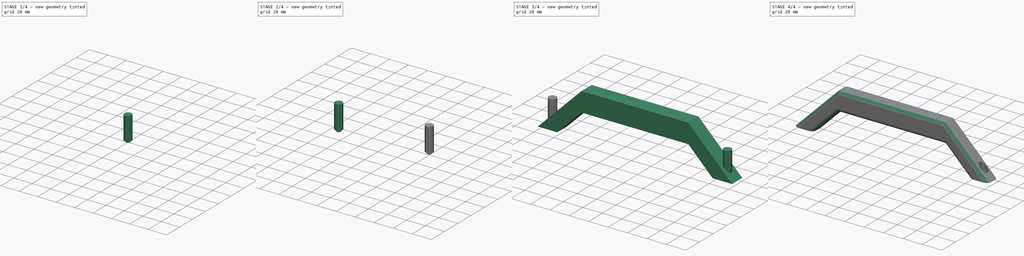
[diagram: build sequence overview — one tinted view per stage of 4, left to right]
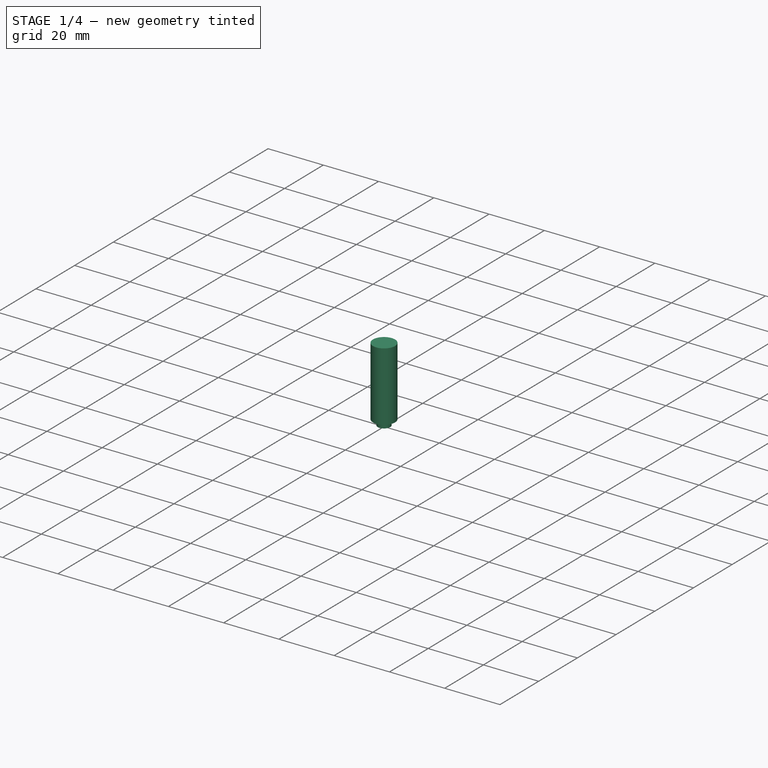
[diagram: stage 1 of 4 — iso view after this stage's code; geometry added in this stage tinted green]
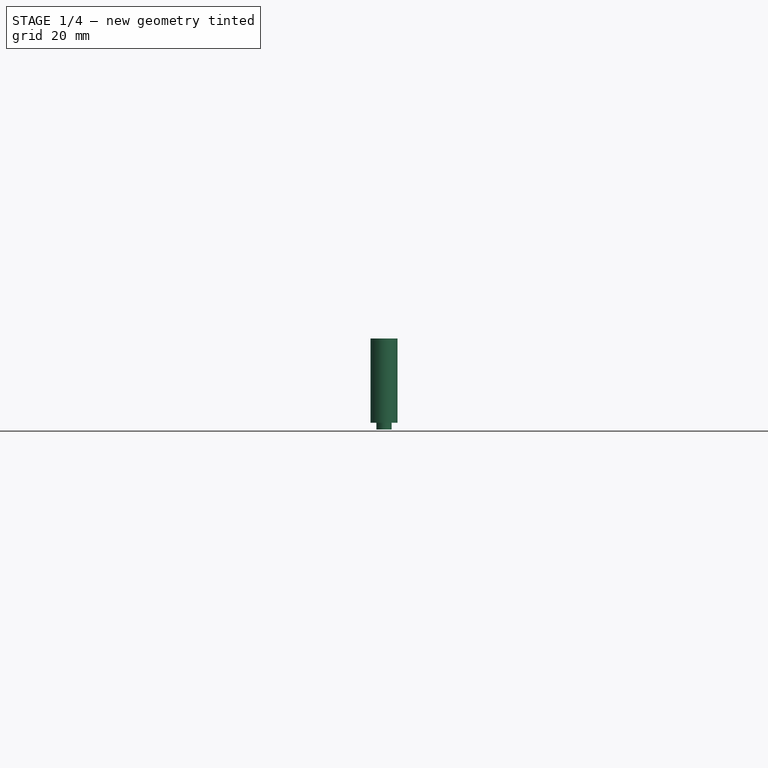
[diagram: stage 1 of 4 — front view after this stage's code; geometry added in this stage tinted green]
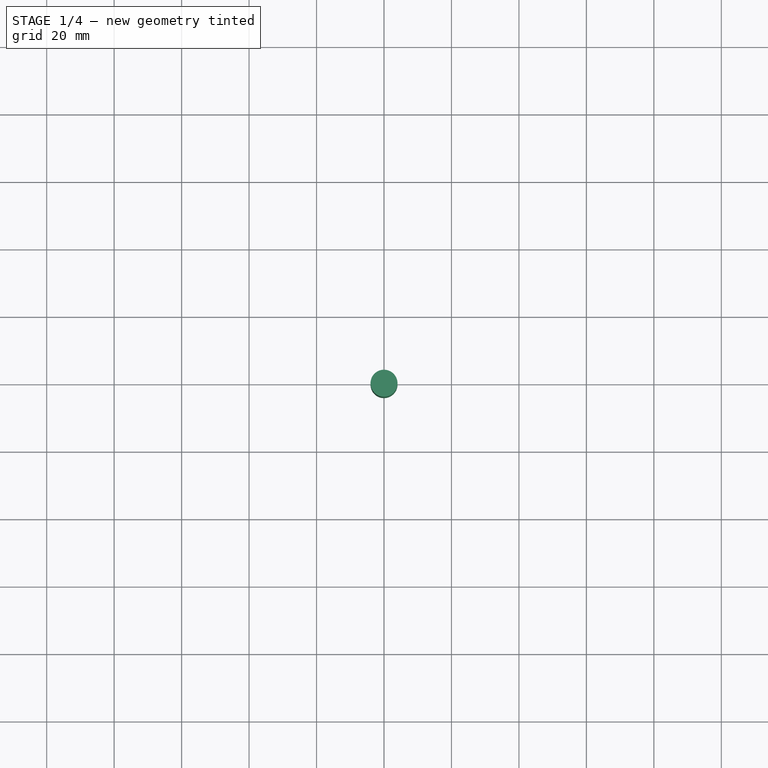
[diagram: stage 1 of 4 — top view after this stage's code; geometry added in this stage tinted green]
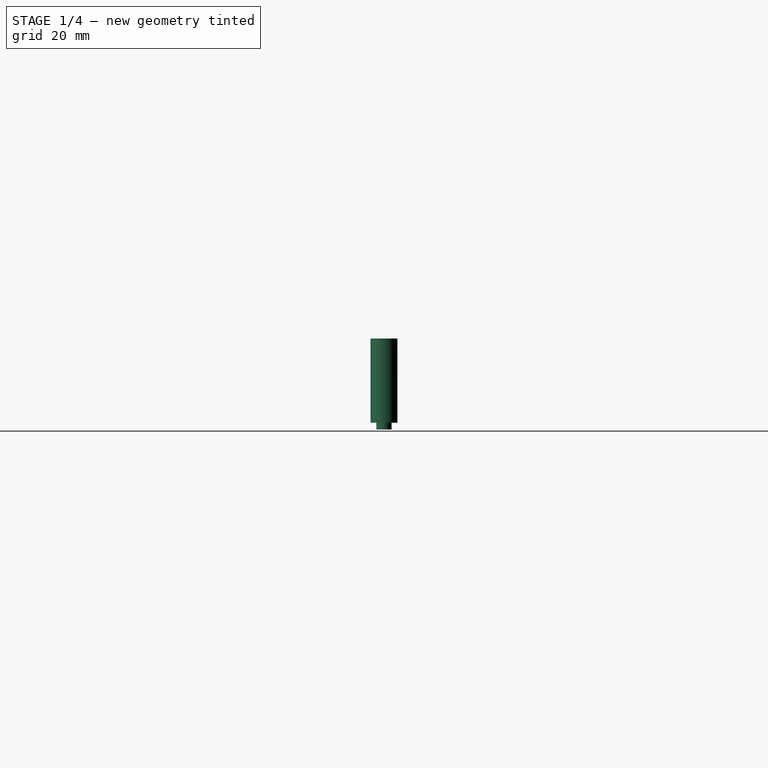
[diagram: stage 1 of 4 — right view after this stage's code; geometry added in this stage tinted green]
FCSTD DOCUMENT  (FreeCAD 1.0R1.0.1)
Label: SimpleHandle01
License: All rights reserved
LicenseURL: http://en.wikipedia.org/wiki/All_rights_reserved
objects: Part::Cylinder×4, Part::MultiFuse×3, Spreadsheet::Sheet×1, Sketcher::SketchObject×1, PartDesign::Pad×1, PartDesign::Body×1, Part::Cut×1, Part::Fillet×1
note: 15 computed .brp shape members not serialized (recipe doc carries the construction recipe); baked Part::Feature solids carry a one-line shape summary decoded from their .brp

FEATURE [Part::Cylinder] Cylinder002
  Angle = 360
  AttacherType = Attacher::AttachEngine3D
  FirstAngle = 0
  Height = 10
  Radius = 2.25
  SecondAngle = 0
FEATURE [Part::Cylinder] Cylinder003
  Angle = 360
  AttacherType = Attacher::AttachEngine3D
  FirstAngle = 0
  Height = 25
  Placement = pos=(0,0,2) rot=(0,0,1;0rad)
  Radius = 4
  SecondAngle = 0
  expr: Height = <<SimpleHandle01>>.h_grip
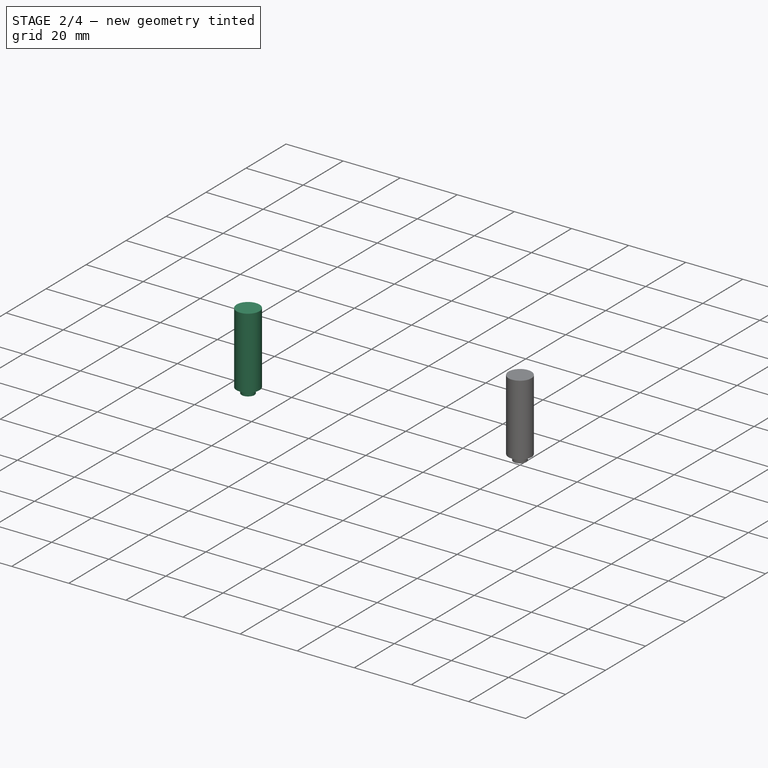
[diagram: stage 2 of 4 — iso view after this stage's code; geometry added in this stage tinted green]
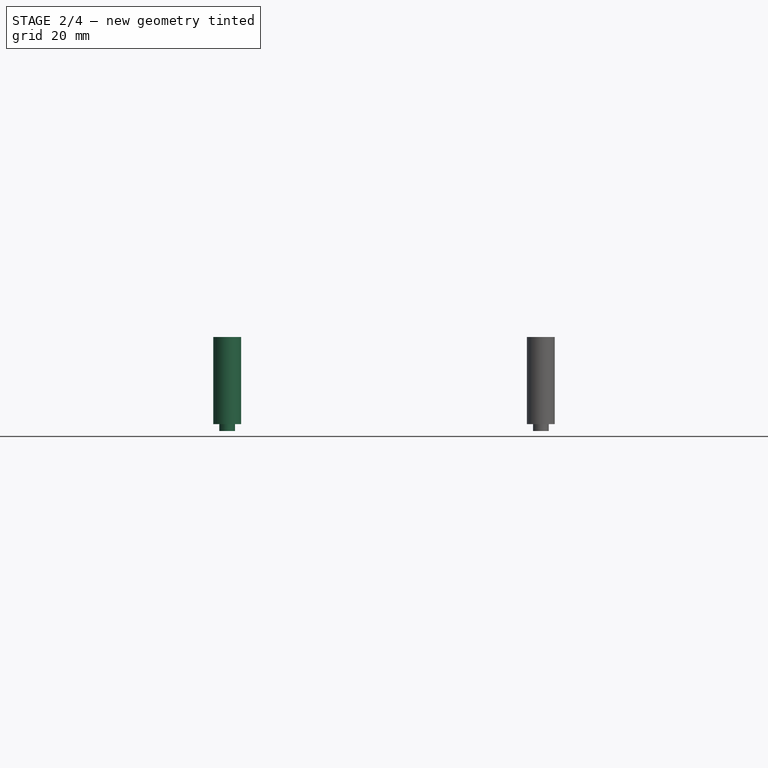
[diagram: stage 2 of 4 — front view after this stage's code; geometry added in this stage tinted green]
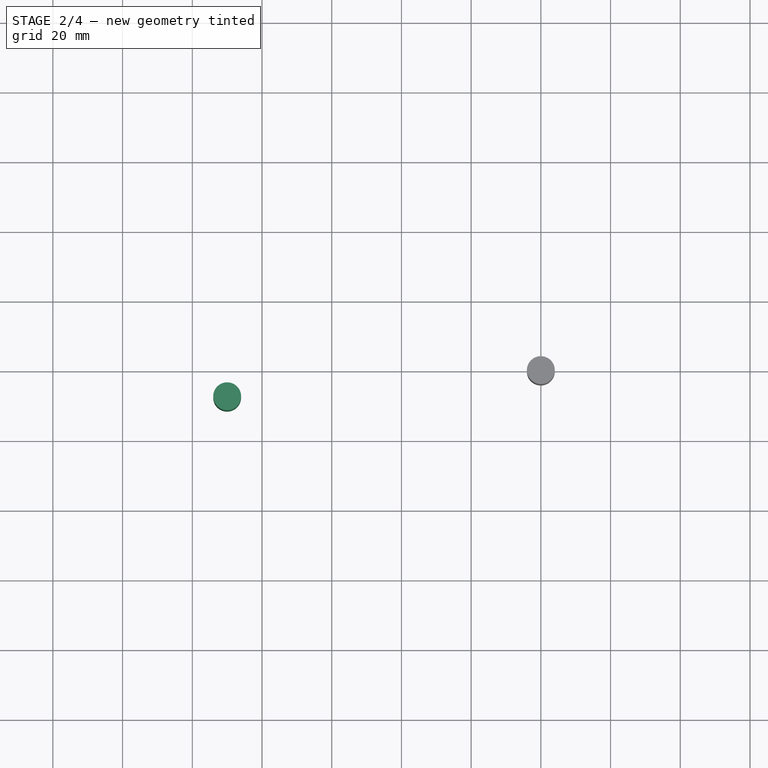
[diagram: stage 2 of 4 — top view after this stage's code; geometry added in this stage tinted green]
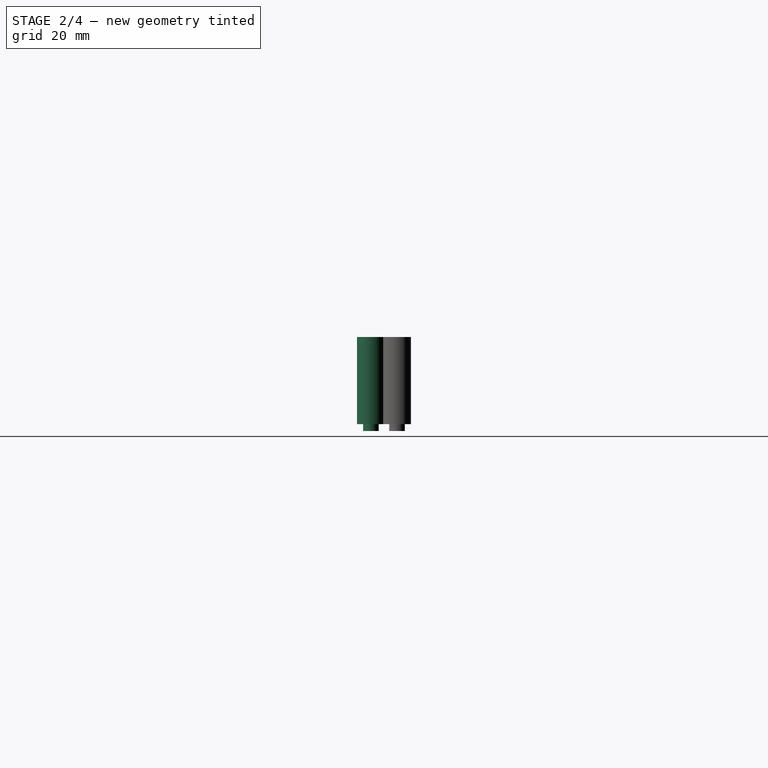
[diagram: stage 2 of 4 — right view after this stage's code; geometry added in this stage tinted green]
FEATURE [PartDesign::Body] Body
  AllowCompound = false
  Group = -> [Sketch,Pad]
  Origin = -> Origin
  Tip = -> Pad
FEATURE [Part::Cylinder] Cylinder
  Angle = 360
  AttacherType = Attacher::AttachEngine3D
  FirstAngle = 0
  Height = 10
  Radius = 2.25
  SecondAngle = 0
FEATURE [Part::Cylinder] Cylinder001
  Angle = 360
  AttacherType = Attacher::AttachEngine3D
  FirstAngle = 0
  Height = 25
  Placement = pos=(0,0,2) rot=(0,0,1;0rad)
  Radius = 4
  SecondAngle = 0
  expr: Height = <<SimpleHandle01>>.h_grip
FEATURE [Part::MultiFuse] Fusion001
  Placement = pos=(-90,-7.5,0) rot=(0,0,1;0rad)
  Shapes = -> [Cylinder003,Cylinder002]
  expr: .Placement.Base.x = -(<<SimpleHandle01>>.l_grip / 2 + <<SimpleHandle01>>.h_grip + <<SimpleHandle01>>.t_handle * tan(45) / 2)
  expr: .Placement.Base.y = -<<SimpleHandle01>>.w_handle / 2
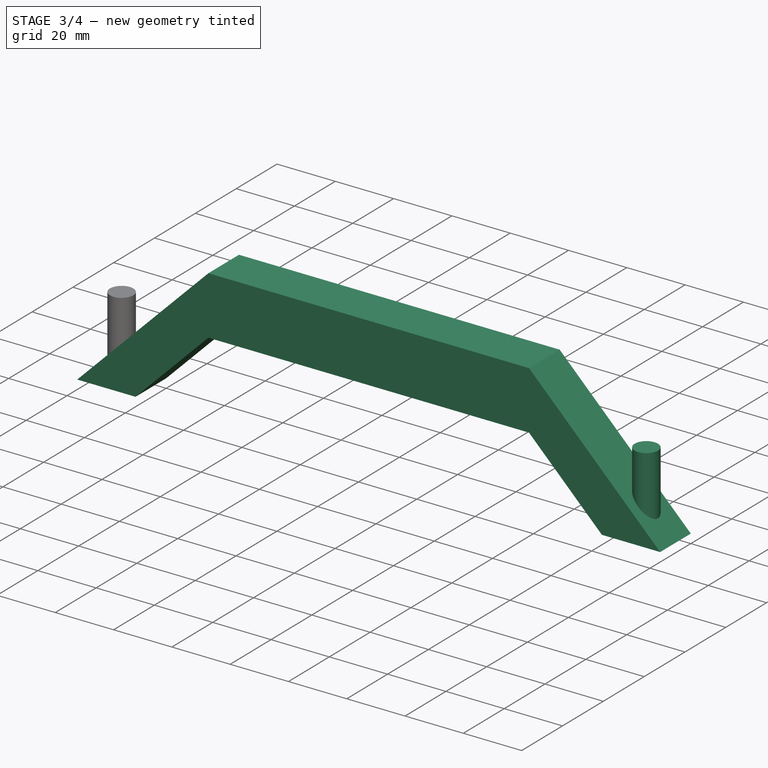
[diagram: stage 3 of 4 — iso view after this stage's code; geometry added in this stage tinted green]
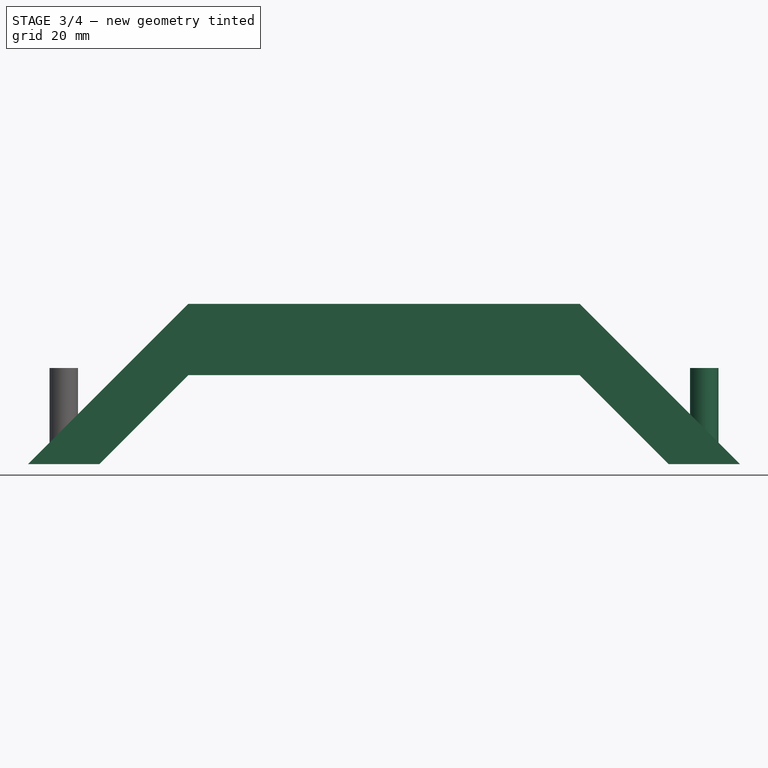
[diagram: stage 3 of 4 — front view after this stage's code; geometry added in this stage tinted green]
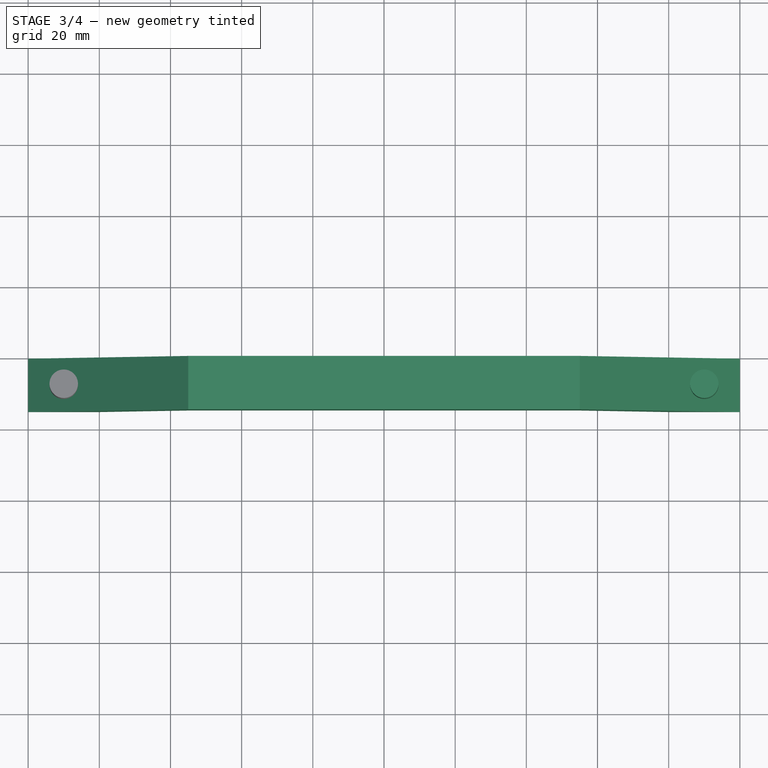
[diagram: stage 3 of 4 — top view after this stage's code; geometry added in this stage tinted green]
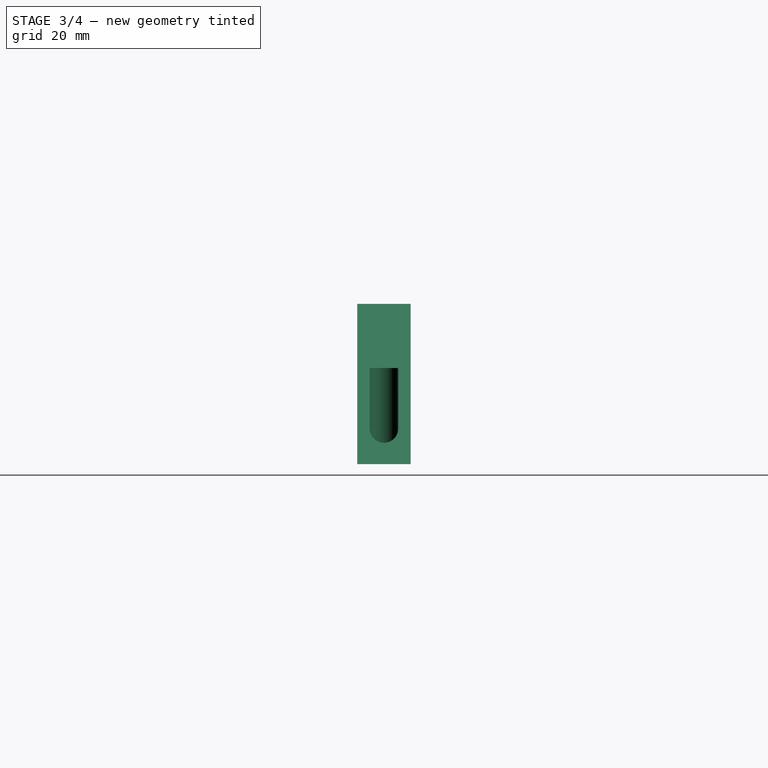
[diagram: stage 3 of 4 — right view after this stage's code; geometry added in this stage tinted green]
FEATURE [Spreadsheet::Sheet] Spreadsheet  label="SimpleHandle01"
  cells = A2='Grip length; B2(l_grip)=110; A3='Grip height; B3(h_grip)=25; A4='Handle thickness; B4(t_handle)=20; A5='Handle width; B5(w_handle)=15
FEATURE [Sketcher::SketchObject] Sketch
  ArcFitTolerance = 1e-06
  AttachmentSupport = -> [XZ_Plane]
  FullyConstrained = true
  MakeInternals = false
  MapMode = 5
  Placement = pos=(0,0,0) rot=(1,0,0;1.5708rad)
  expr: Constraints[14] = <<SimpleHandle01>>.l_grip
  expr: Constraints[15] = <<SimpleHandle01>>.l_grip
  expr: Constraints[16] = <<SimpleHandle01>>.l_grip / 2
  expr: Constraints[17] = <<SimpleHandle01>>.l_grip / 2
  expr: Constraints[18] = 90 + 45
  expr: Constraints[19] = 90 + 45
  expr: Constraints[20] = 90 + 45
  expr: Constraints[21] = 90 + 45
  expr: Constraints[22] = <<SimpleHandle01>>.t_handle
  expr: Constraints[23] = <<SimpleHandle01>>.h_grip
  sketch-geometry (8):
    g0: LineSegment StartX=-80 StartY=0 StartZ=0 EndX=-55 EndY=25 EndZ=0
    g1: LineSegment StartX=-55 StartY=25 StartZ=0 EndX=55 EndY=25 EndZ=0
    g2: LineSegment StartX=55 StartY=25 StartZ=0 EndX=80 EndY=0 EndZ=0
    g3: LineSegment StartX=80 StartY=0 StartZ=0 EndX=100 EndY=0 EndZ=0
    g4: LineSegment StartX=100 StartY=0 StartZ=0 EndX=55 EndY=45 EndZ=0
    g5: LineSegment StartX=55 StartY=45 StartZ=0 EndX=-55 EndY=45 EndZ=0
    g6: LineSegment StartX=-55 StartY=45 StartZ=0 EndX=-100 EndY=0 EndZ=0
    g7: LineSegment StartX=-100 StartY=0 StartZ=0 EndX=-80 EndY=0 EndZ=0
  constraints (24):
    c: PointOnObject(g0,g-1)
    c: Coincident(g0,g1)
    c: Horizontal(g1)
    c: Coincident(g1,g2)
    c: Coincident(g2,g3)
    c: PointOnObject(g3,g-1)
    c: Horizontal(g3)
    c: Coincident(g3,g4)
    c: Coincident(g4,g5)
    c: Horizontal(g5)
    c: Coincident(g5,g6)
    c: PointOnObject(g6,g-1)
    c: Coincident(g6,g7)
    c: Coincident(g7,g0)
    c: DistanceX(g5,g5) = 110
    c: DistanceX(g1,g1) = 110
    c: DistanceX(g5,g-1) = 55
    c: DistanceX(g0,g-1) = 55
    c: Angle(g5,g4) = 2.35619
    c: Angle(g1,g2) = 2.35619
    c: Angle(g0,g1) = 2.35619
    c: Angle(g6,g5) = 2.35619
    c: DistanceY(g0,g5) = 20
    c: DistanceY(g-1,g0) = 25
FEATURE [PartDesign::Pad] Pad
  Direction = (0,-1,2e-16)
  Length = 15
  Length2 = 10
  Placement = pos=(0,0,0) rot=(1,0,0;1.5708rad)
  Profile = -> Sketch
  ReferenceAxis = -> Sketch [N_Axis]
  Suppressed = false
  Type = 0
  expr: Length = <<SimpleHandle01>>.w_handle
FEATURE [Part::MultiFuse] Fusion
  Placement = pos=(90,-7.5,0) rot=(0,0,1;0rad)
  Shapes = -> [Cylinder001,Cylinder]
  expr: .Placement.Base.x = <<SimpleHandle01>>.l_grip / 2 + <<SimpleHandle01>>.h_grip + <<SimpleHandle01>>.t_handle * tan(45) / 2
  expr: .Placement.Base.y = -<<SimpleHandle01>>.w_handle / 2
FEATURE [Part::MultiFuse] Fusion002
  Shapes = -> [Fusion001,Fusion]
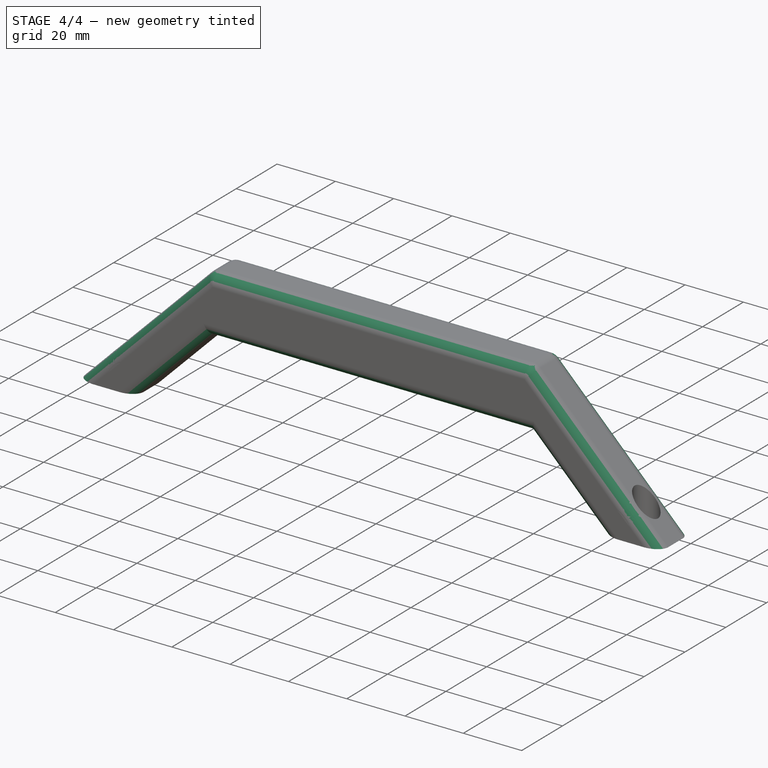
[diagram: stage 4 of 4 — iso view after this stage's code; geometry added in this stage tinted green]
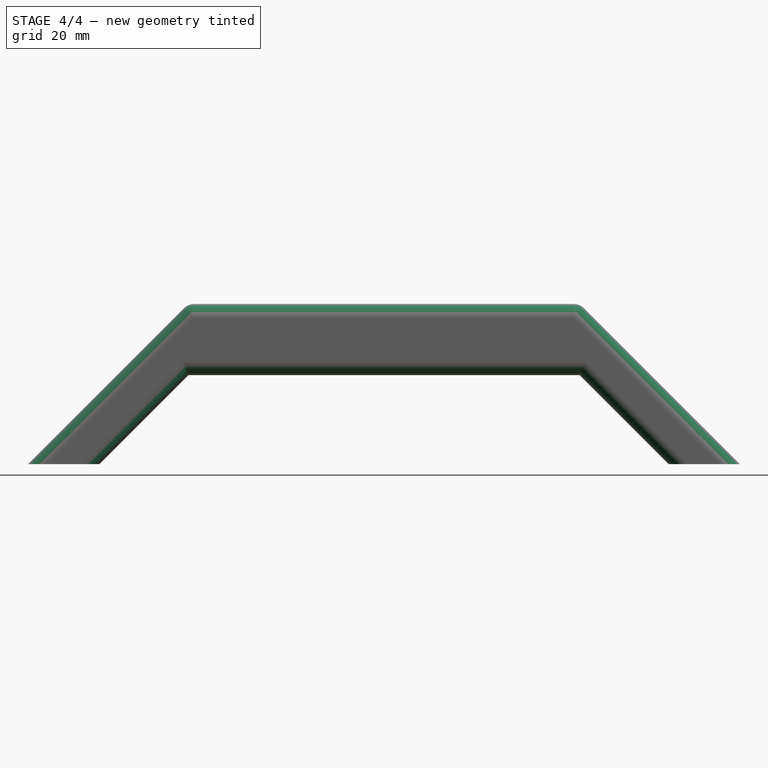
[diagram: stage 4 of 4 — front view after this stage's code; geometry added in this stage tinted green]
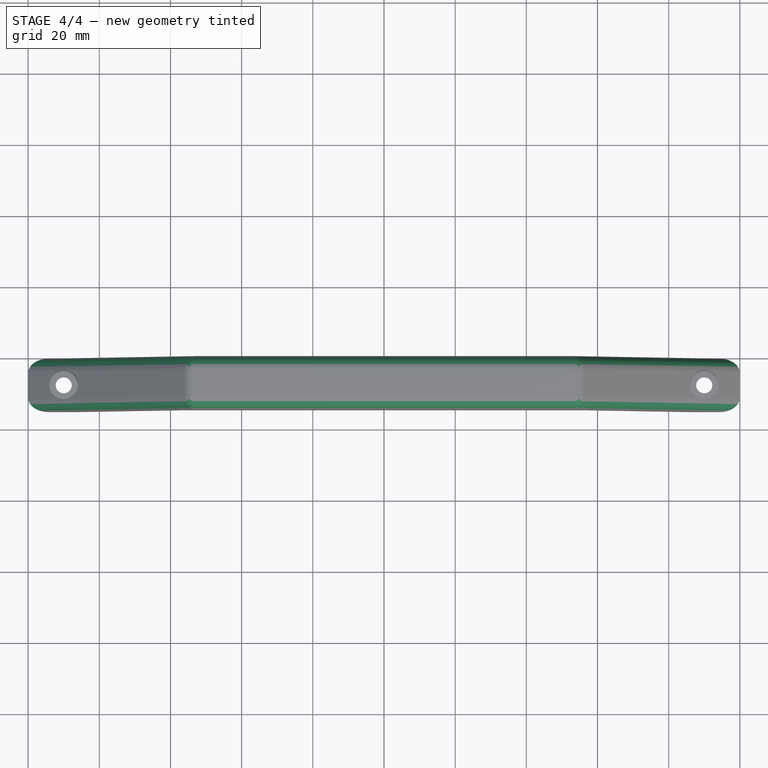
[diagram: stage 4 of 4 — top view after this stage's code; geometry added in this stage tinted green]
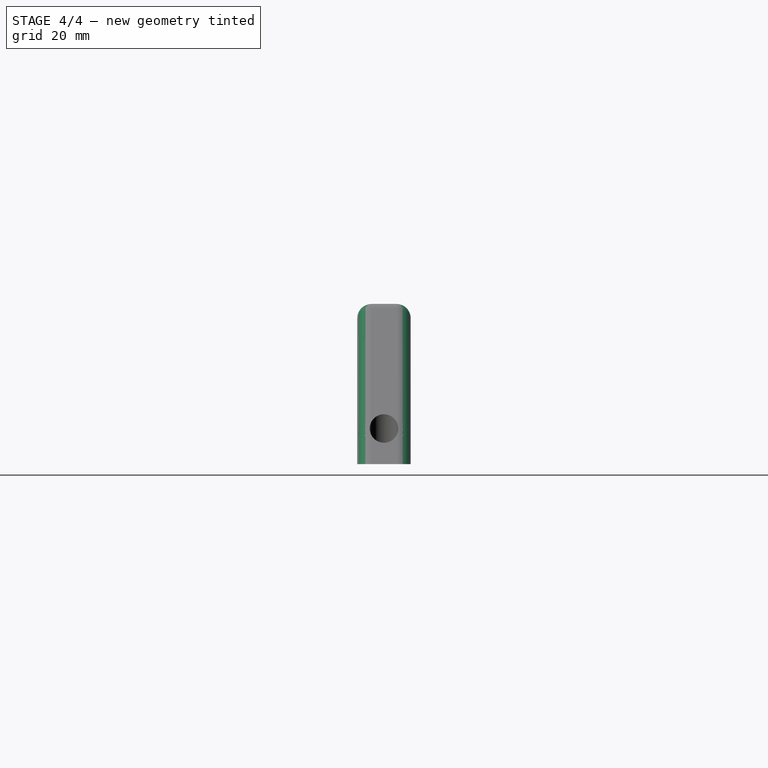
[diagram: stage 4 of 4 — right view after this stage's code; geometry added in this stage tinted green]
FEATURE [Part::Cut] Cut
  Base = -> Body
  Tool = -> Fusion002
FEATURE [Part::Fillet] Fillet
  Base = -> Cut
  EdgeLinks = -> Cut [Edge3,Edge4,Edge10,Edge11,Edge12,Edge14,Edge15,Edge16,Edge17,Edge19,Edge20,Edge21,Edge22,Edge29]
  Edges = 14 edges r=4: [Edge3,Edge4,Edge10,Edge11,Edge12,Edge14,Edge15,Edge16,Edge17,Edge19,Edge20,Edge21,Edge22,Edge29]
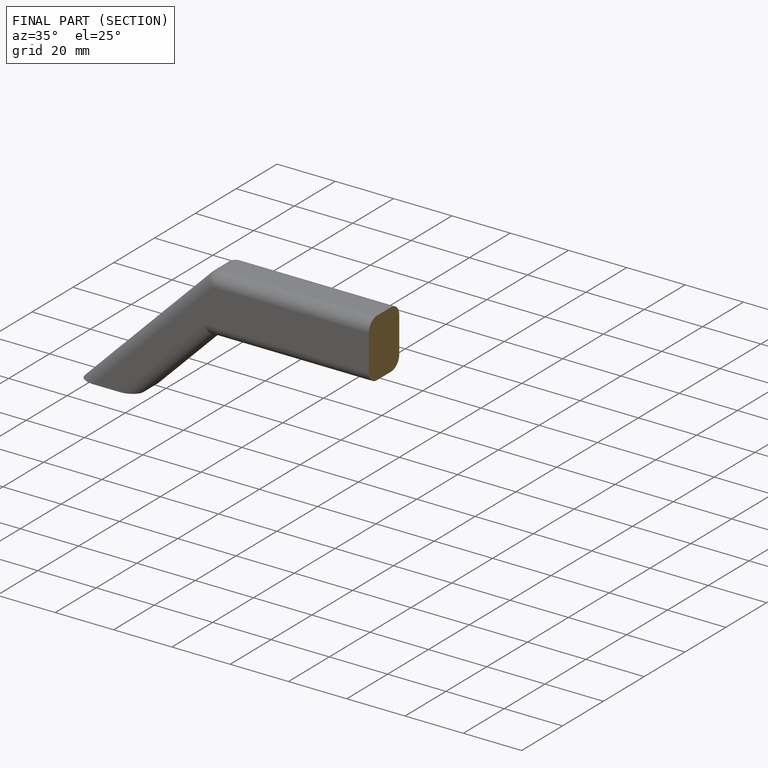
[diagram: finished part — half-section view (interior)]
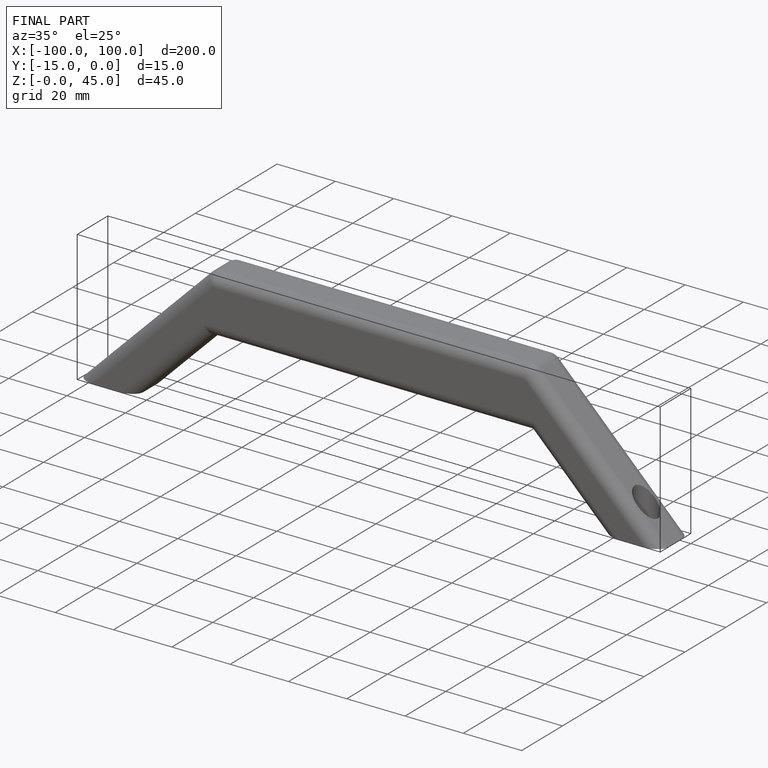
[diagram: finished part — iso view with bounding-box wireframe]
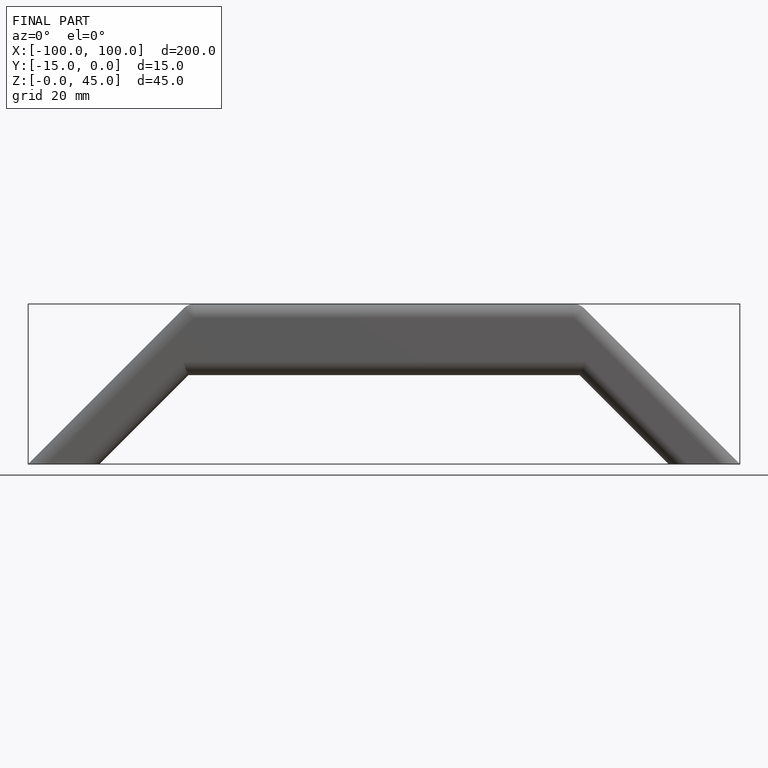
[diagram: finished part — front view with bounding-box wireframe]
